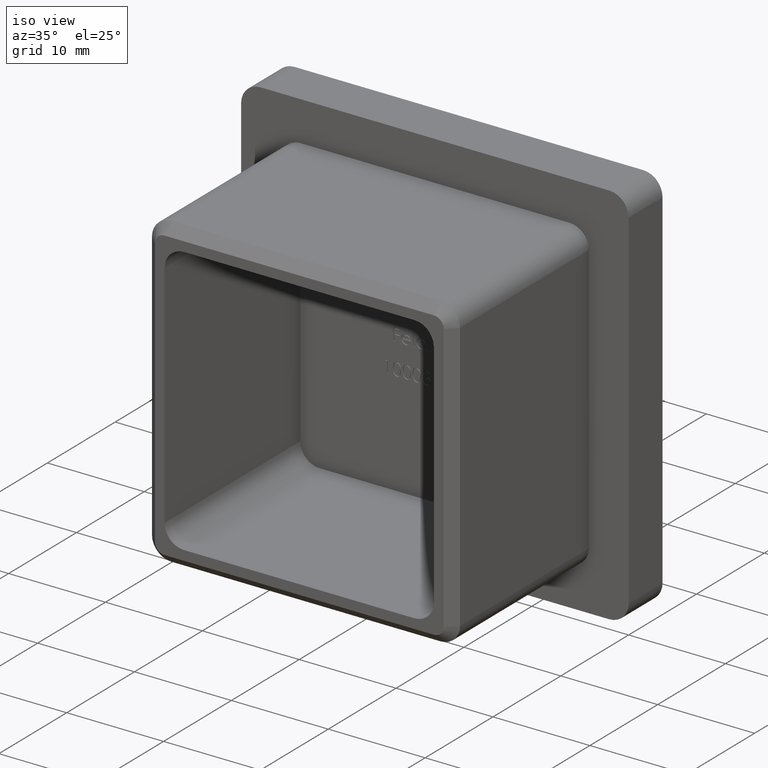
[diagram: clean part render]
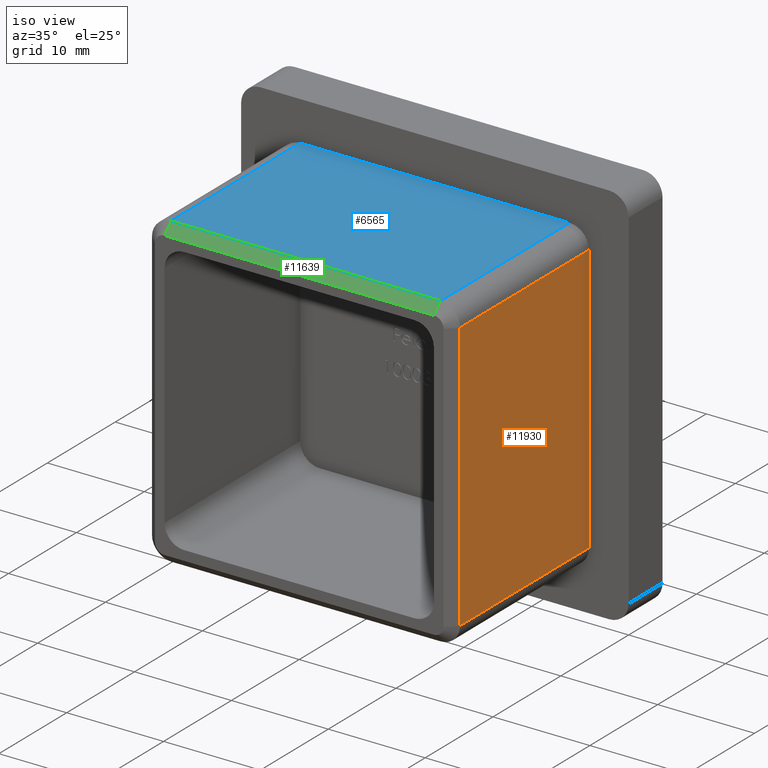
[diagram: same view with three faces highlighted in distinct colors, each labeled with its STEP entity id]
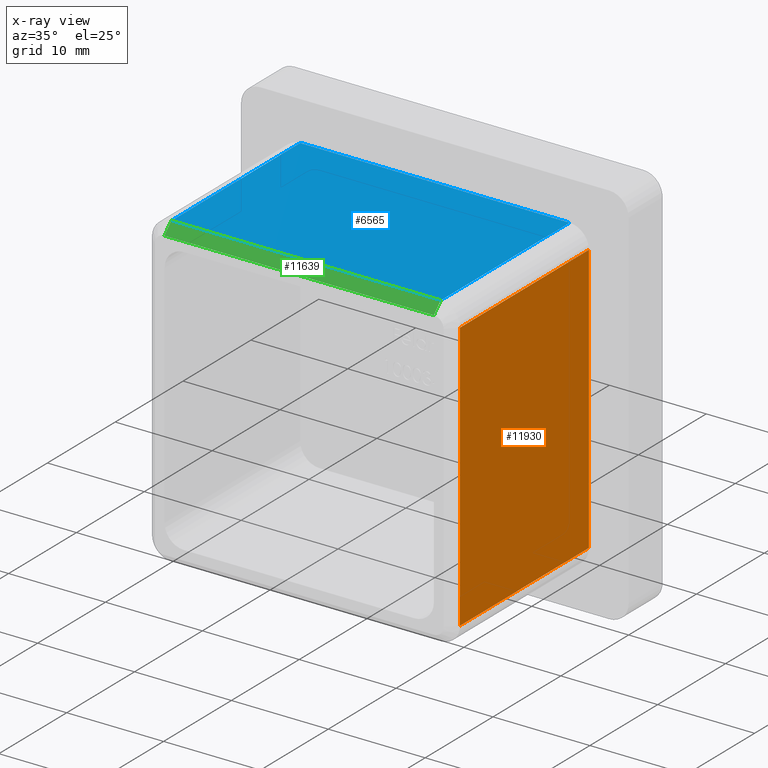
[diagram: x-ray of the same camera — body ghosted, the three highlighted faces saturated]
A machine part, iso view with three faces highlighted in distinct colors.
The next image is the same camera in x-ray (body ghosted, the three faces saturated) — at least one of them is partly hidden behind the body in this view.
Their STEP definitions:

[orange] entity #11930 — the highlighted planar face has unit normal (-1, 0, -0).
#19 = VERTEX_POINT ( 'NONE', #1660 ) ;
#912 = DIRECTION ( 'NONE',  ( -1.000000000000000000, 0.0000000000000000000, -0.0000000000000000000 ) ) ;
#1052 = ORIENTED_EDGE ( 'NONE', *, *, #8295, .T. ) ;
#1230 = CARTESIAN_POINT ( 'NONE',  ( 15.90000000000000000, -20.00000000000000000, -13.89999999999999900 ) ) ;
#1660 = CARTESIAN_POINT ( 'NONE',  ( 15.90000000000000000, -18.99999999999998600, -13.89999999999999900 ) ) ;
#1942 = CARTESIAN_POINT ( 'NONE',  ( 15.90000000000000000, -20.00000000000000000, 15.90000000000000000 ) ) ;
#2771 = CARTESIAN_POINT ( 'NONE',  ( 15.90000000000000000, -18.99999999999998600, -13.89999999999999900 ) ) ;
#4588 = VERTEX_POINT ( 'NONE', #13975 ) ;
#4917 = CARTESIAN_POINT ( 'NONE',  ( 15.90000000000000000, -20.00000000000000000, 13.90000000000000000 ) ) ;
#4990 = EDGE_CURVE ( 'NONE', #12968, #19, #12513, .T. ) ;
#5036 = DIRECTION ( 'NONE',  ( 0.0000000000000000000, 0.0000000000000000000, -1.000000000000000000 ) ) ;
#6034 = VERTEX_POINT ( 'NONE', #14475 ) ;
#7134 = LINE ( 'NONE', #1230, #10211 ) ;
#7405 = ORIENTED_EDGE ( 'NONE', *, *, #10110, .T. ) ;
#7849 = PLANE ( 'NONE',  #13488 ) ;
#8295 = EDGE_CURVE ( 'NONE', #19, #4588, #7134, .T. ) ;
#8479 = DIRECTION ( 'NONE',  ( -0.0000000000000000000, -1.000000000000000000, -0.0000000000000000000 ) ) ;
#8961 = ORIENTED_EDGE ( 'NONE', *, *, #4990, .T. ) ;
#9363 = DIRECTION ( 'NONE',  ( 0.0000000000000000000, 1.000000000000000000, 0.0000000000000000000 ) ) ;
#9437 = LINE ( 'NONE', #4917, #14910 ) ;
#9959 = CARTESIAN_POINT ( 'NONE',  ( 15.90000000000000000, -18.99999999999998600, 13.90000000000000000 ) ) ;
#10110 = EDGE_CURVE ( 'NONE', #6034, #12968, #9437, .T. ) ;
#10211 = VECTOR ( 'NONE', #9363, 1000.000000000000000 ) ;
#10947 = EDGE_LOOP ( 'NONE', ( #7405, #8961, #1052, #12948 ) ) ;
#11885 = EDGE_CURVE ( 'NONE', #4588, #6034, #14679, .T. ) ;
#11930 = ADVANCED_FACE ( 'NONE', ( #13415 ), #7849, .F. ) ;
#12151 = VECTOR ( 'NONE', #5036, 1000.000000000000000 ) ;
#12513 = LINE ( 'NONE', #2771, #12151 ) ;
#12948 = ORIENTED_EDGE ( 'NONE', *, *, #11885, .T. ) ;
#12968 = VERTEX_POINT ( 'NONE', #9959 ) ;
#13415 = FACE_OUTER_BOUND ( 'NONE', #10947, .T. ) ;
#13488 = AXIS2_PLACEMENT_3D ( 'NONE', #1942, #912, #13525 ) ;
#13525 = DIRECTION ( 'NONE',  ( -0.0000000000000000000, 0.0000000000000000000, 1.000000000000000000 ) ) ;
#13615 = CARTESIAN_POINT ( 'NONE',  ( 15.90000000000000000, 0.0000000000000000000, 15.90000000000000000 ) ) ;
#13953 = VECTOR ( 'NONE', #14637, 1000.000000000000000 ) ;
#13975 = CARTESIAN_POINT ( 'NONE',  ( 15.90000000000000000, 0.0000000000000000000, -13.89999999999999900 ) ) ;
#14475 = CARTESIAN_POINT ( 'NONE',  ( 15.90000000000000000, 0.0000000000000000000, 13.90000000000000000 ) ) ;
#14637 = DIRECTION ( 'NONE',  ( -0.0000000000000000000, -0.0000000000000000000, 1.000000000000000000 ) ) ;
#14679 = LINE ( 'NONE', #13615, #13953 ) ;
#14910 = VECTOR ( 'NONE', #8479, 1000.000000000000000 ) ;

[blue] entity #6565 — the highlighted planar face has unit normal (0, 0, -1).
#29 = LINE ( 'NONE', #9528, #8923 ) ;
#141 = FACE_OUTER_BOUND ( 'NONE', #6599, .T. ) ;
#850 = VECTOR ( 'NONE', #5209, 1000.000000000000000 ) ;
#1206 = LINE ( 'NONE', #2797, #850 ) ;
#1567 = AXIS2_PLACEMENT_3D ( 'NONE', #5800, #2313, #13887 ) ;
#1685 = DIRECTION ( 'NONE',  ( -1.000000000000000000, -0.0000000000000000000, -0.0000000000000000000 ) ) ;
#2313 = DIRECTION ( 'NONE',  ( 0.0000000000000000000, 0.0000000000000000000, -1.000000000000000000 ) ) ;
#2797 = CARTESIAN_POINT ( 'NONE',  ( 13.89999999999999900, -18.99999999999998600, 15.90000000000000000 ) ) ;
#4298 = EDGE_CURVE ( 'NONE', #7182, #11979, #5242, .T. ) ;
#4347 = DIRECTION ( 'NONE',  ( 0.0000000000000000000, 1.000000000000000000, 0.0000000000000000000 ) ) ;
#4411 = VECTOR ( 'NONE', #4347, 1000.000000000000000 ) ;
#4910 = ORIENTED_EDGE ( 'NONE', *, *, #13476, .T. ) ;
#5209 = DIRECTION ( 'NONE',  ( 1.000000000000000000, 0.0000000000000000000, 0.0000000000000000000 ) ) ;
#5242 = LINE ( 'NONE', #13123, #14703 ) ;
#5800 = CARTESIAN_POINT ( 'NONE',  ( -15.90000000000000000, -20.00000000000000000, 15.90000000000000000 ) ) ;
#5956 = CARTESIAN_POINT ( 'NONE',  ( -13.90000000000000000, 0.0000000000000000000, 15.90000000000000000 ) ) ;
#6103 = VERTEX_POINT ( 'NONE', #6488 ) ;
#6488 = CARTESIAN_POINT ( 'NONE',  ( 13.89999999999999900, -18.99999999999998600, 15.90000000000000000 ) ) ;
#6565 = ADVANCED_FACE ( 'NONE', ( #141 ), #8119, .F. ) ;
#6599 = EDGE_LOOP ( 'NONE', ( #9157, #12434, #13207, #4910 ) ) ;
#6650 = EDGE_CURVE ( 'NONE', #11979, #6103, #1206, .T. ) ;
#7182 = VERTEX_POINT ( 'NONE', #5956 ) ;
#7302 = LINE ( 'NONE', #9017, #4411 ) ;
#8119 = PLANE ( 'NONE',  #1567 ) ;
#8613 = EDGE_CURVE ( 'NONE', #6103, #10909, #7302, .T. ) ;
#8923 = VECTOR ( 'NONE', #1685, 1000.000000000000000 ) ;
#9017 = CARTESIAN_POINT ( 'NONE',  ( 13.89999999999999900, -20.00000000000000000, 15.90000000000000000 ) ) ;
#9157 = ORIENTED_EDGE ( 'NONE', *, *, #4298, .T. ) ;
#9528 = CARTESIAN_POINT ( 'NONE',  ( -15.90000000000000000, 0.0000000000000000000, 15.90000000000000000 ) ) ;
#10909 = VERTEX_POINT ( 'NONE', #13684 ) ;
#11511 = CARTESIAN_POINT ( 'NONE',  ( -13.90000000000000000, -18.99999999999998600, 15.90000000000000000 ) ) ;
#11932 = DIRECTION ( 'NONE',  ( -0.0000000000000000000, -1.000000000000000000, -0.0000000000000000000 ) ) ;
#11979 = VERTEX_POINT ( 'NONE', #11511 ) ;
#12434 = ORIENTED_EDGE ( 'NONE', *, *, #6650, .T. ) ;
#13123 = CARTESIAN_POINT ( 'NONE',  ( -13.90000000000000000, -20.00000000000000000, 15.90000000000000000 ) ) ;
#13207 = ORIENTED_EDGE ( 'NONE', *, *, #8613, .T. ) ;
#13476 = EDGE_CURVE ( 'NONE', #10909, #7182, #29, .T. ) ;
#13684 = CARTESIAN_POINT ( 'NONE',  ( 13.89999999999999900, 0.0000000000000000000, 15.90000000000000000 ) ) ;
#13887 = DIRECTION ( 'NONE',  ( -1.000000000000000000, 0.0000000000000000000, -0.0000000000000000000 ) ) ;
#14703 = VECTOR ( 'NONE', #11932, 1000.000000000000000 ) ;

[green] entity #11639 — the highlighted planar face has unit normal (0, -0.7071, 0.7071).
#21 = ORIENTED_EDGE ( 'NONE', *, *, #7358, .F. ) ;
#128 = VECTOR ( 'NONE', #11497, 1000.000000000000100 ) ;
#278 = CARTESIAN_POINT ( 'NONE',  ( -13.90000000000000000, -20.00000000000000000, 14.89999999999999300 ) ) ;
#662 = ORIENTED_EDGE ( 'NONE', *, *, #15010, .T. ) ;
#850 = VECTOR ( 'NONE', #5209, 1000.000000000000000 ) ;
#1206 = LINE ( 'NONE', #2797, #850 ) ;
#1549 = DIRECTION ( 'NONE',  ( -1.000000000000000000, 0.0000000000000000000, 0.0000000000000000000 ) ) ;
#2797 = CARTESIAN_POINT ( 'NONE',  ( 13.89999999999999900, -18.99999999999998600, 15.90000000000000000 ) ) ;
#2845 = VECTOR ( 'NONE', #1549, 1000.000000000000000 ) ;
#4467 = DIRECTION ( 'NONE',  ( 0.0000000000000000000, -0.7071067811865500200, -0.7071067811865451300 ) ) ;
#4519 = VERTEX_POINT ( 'NONE', #5842 ) ;
#5122 = DIRECTION ( 'NONE',  ( 0.0000000000000000000, -0.7071067811865451300, 0.7071067811865500200 ) ) ;
#5209 = DIRECTION ( 'NONE',  ( 1.000000000000000000, 0.0000000000000000000, 0.0000000000000000000 ) ) ;
#5314 = DIRECTION ( 'NONE',  ( 1.000000000000000000, 0.0000000000000000000, 0.0000000000000000000 ) ) ;
#5768 = VERTEX_POINT ( 'NONE', #7074 ) ;
#5783 = FACE_OUTER_BOUND ( 'NONE', #8255, .T. ) ;
#5827 = VECTOR ( 'NONE', #4467, 1000.000000000000100 ) ;
#5842 = CARTESIAN_POINT ( 'NONE',  ( 13.89999999999999900, -20.00000000000000000, 14.89999999999999300 ) ) ;
#6103 = VERTEX_POINT ( 'NONE', #6488 ) ;
#6471 = LINE ( 'NONE', #12722, #128 ) ;
#6488 = CARTESIAN_POINT ( 'NONE',  ( 13.89999999999999900, -18.99999999999998600, 15.90000000000000000 ) ) ;
#6650 = EDGE_CURVE ( 'NONE', #11979, #6103, #1206, .T. ) ;
#6761 = AXIS2_PLACEMENT_3D ( 'NONE', #12018, #5122, #5314 ) ;
#7074 = CARTESIAN_POINT ( 'NONE',  ( -13.90000000000000000, -20.00000000000000000, 14.89999999999999300 ) ) ;
#7358 = EDGE_CURVE ( 'NONE', #6103, #4519, #6471, .T. ) ;
#7422 = PLANE ( 'NONE',  #6761 ) ;
#7517 = EDGE_CURVE ( 'NONE', #4519, #5768, #8663, .T. ) ;
#8060 = ORIENTED_EDGE ( 'NONE', *, *, #6650, .F. ) ;
#8255 = EDGE_LOOP ( 'NONE', ( #662, #10836, #21, #8060 ) ) ;
#8663 = LINE ( 'NONE', #278, #2845 ) ;
#10836 = ORIENTED_EDGE ( 'NONE', *, *, #7517, .F. ) ;
#11497 = DIRECTION ( 'NONE',  ( 0.0000000000000000000, -0.7071067811865500200, -0.7071067811865451300 ) ) ;
#11511 = CARTESIAN_POINT ( 'NONE',  ( -13.90000000000000000, -18.99999999999998600, 15.90000000000000000 ) ) ;
#11639 = ADVANCED_FACE ( 'NONE', ( #5783 ), #7422, .T. ) ;
#11979 = VERTEX_POINT ( 'NONE', #11511 ) ;
#12018 = CARTESIAN_POINT ( 'NONE',  ( 0.0000000000000000000, -20.00000000000000000, 14.89999999999999300 ) ) ;
#12365 = LINE ( 'NONE', #14627, #5827 ) ;
#12722 = CARTESIAN_POINT ( 'NONE',  ( 13.89999999999999900, -18.99999999999998600, 15.90000000000000000 ) ) ;
#14627 = CARTESIAN_POINT ( 'NONE',  ( -13.90000000000000000, -18.99999999999998600, 15.90000000000000000 ) ) ;
#15010 = EDGE_CURVE ( 'NONE', #11979, #5768, #12365, .T. ) ;